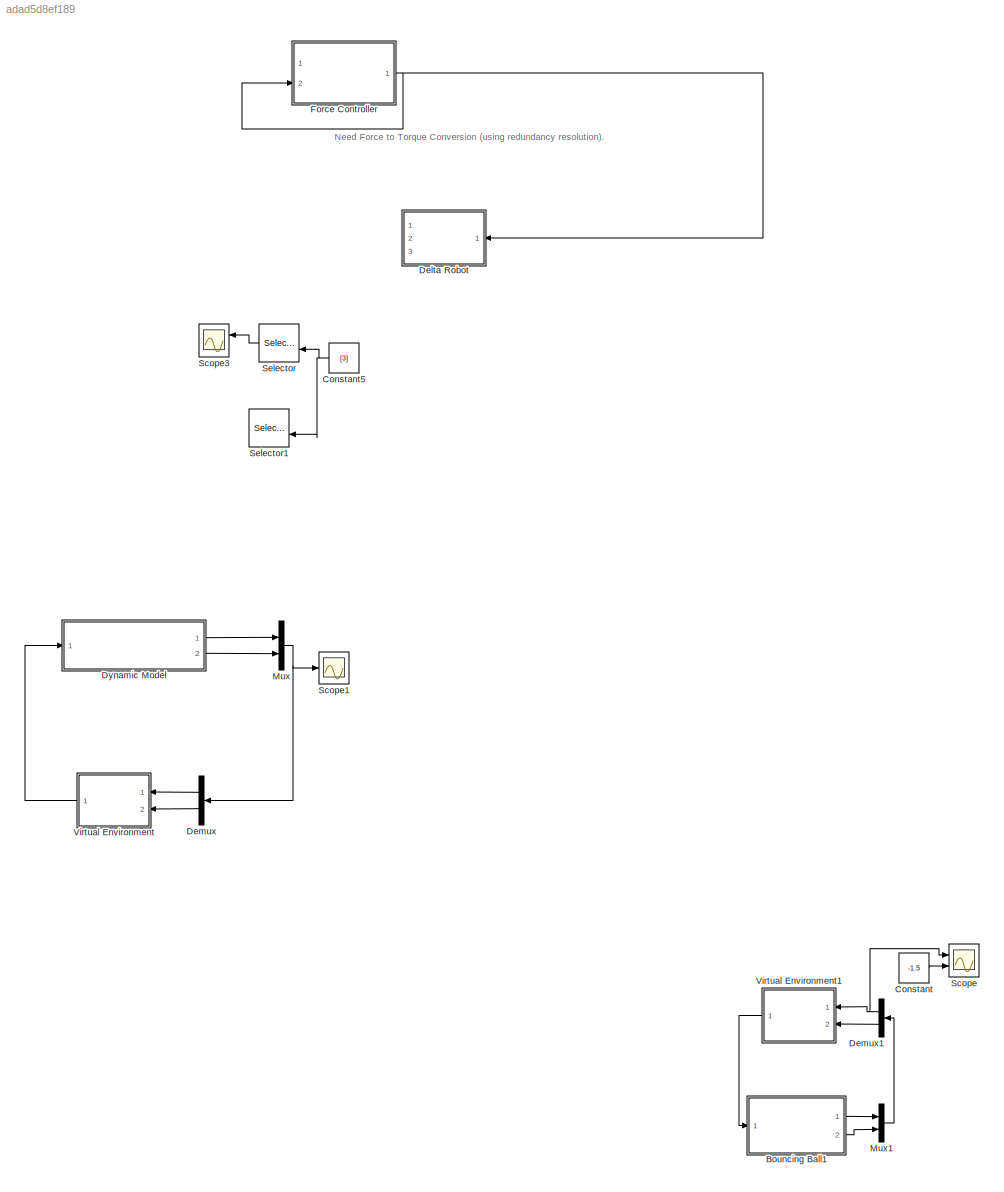
MODEL slx_adad5d8ef189
KIND model
CONFIG AbsTol = auto
CONFIG EnableMultiTasking = off
CONFIG FixedStep = auto
CONFIG MaxStep = .0001
CONFIG MinStep = auto
CONFIG RelTol = auto
CONFIG SampleTimeConstraint = Unconstrained
CONFIG Solver = ode23t
CONFIG SolverName = ode23t
CONFIG StartTime = 0.0
CONFIG StopTime = 30
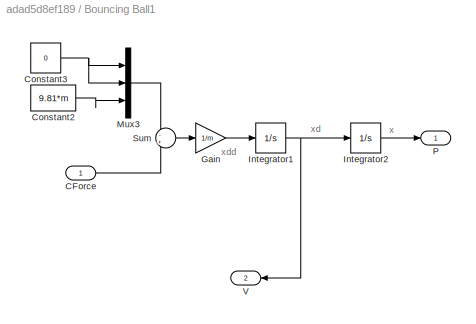
BLOCK [SubSystem] Bouncing Ball1
  Commented = on
  Ports = [1, 2]
  RequestExecContextInheritance = off
BLOCK [Inport] Bouncing Ball1/CForce
  IconDisplay = Port number
BLOCK [Constant] Bouncing Ball1/Constant2
  Value = 9.81*m
BLOCK [Constant] Bouncing Ball1/Constant3
  Value = 0
BLOCK [Gain] Bouncing Ball1/Gain
  Gain = 1/m
  OutDataTypeStr = Inherit: Inherit via internal rule
  ParamDataTypeStr = Inherit: Inherit via internal rule
  SaturateOnIntegerOverflow = off
BLOCK [Integrator] Bouncing Ball1/Integrator1
  InitialCondition = [0;0;0]
  Ports = [1, 1]
BLOCK [Integrator] Bouncing Ball1/Integrator2
  InitialCondition = [0;0;-0.5]
  Ports = [1, 1]
BLOCK [Mux] Bouncing Ball1/Mux3
  DisplayOption = bar
  Inputs = 3
  Ports = [3, 1]
BLOCK [Outport] Bouncing Ball1/P
  IconDisplay = Port number
BLOCK [Sum] Bouncing Ball1/Sum
  IconShape = round
  InputSameDT = off
  Inputs = -+
  OutDataTypeStr = Inherit: Inherit via internal rule
  Ports = [2, 1]
  SaturateOnIntegerOverflow = off
BLOCK [Outport] Bouncing Ball1/V
  IconDisplay = Port number
  Port = 2
BLOCK [Constant] Constant
  Commented = on
  Value = -1.5
BLOCK [Constant] Constant5
  Commented = on
  Value = [3]
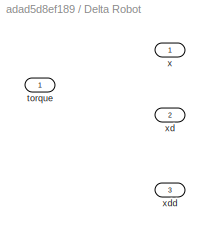
BLOCK [SubSystem] Delta Robot
  Commented = on
  Ports = [1, 3]
  RequestExecContextInheritance = off
BLOCK [Inport] Delta Robot/torque 
  IconDisplay = Port number
BLOCK [Outport] Delta Robot/x
  IconDisplay = Port number
BLOCK [Outport] Delta Robot/xd
  IconDisplay = Port number
  Port = 2
BLOCK [Outport] Delta Robot/xdd
  IconDisplay = Port number
  Port = 3
BLOCK [Demux] Demux
  DisplayOption = bar
  Outputs = 2
  Ports = [1, 2]
BLOCK [Demux] Demux1
  Commented = on
  DisplayOption = bar
  Outputs = 2
  Ports = [1, 2]
BLOCK [ModelReference] Dynamic Model 
  ModelNameDialog = jointSpace_delta
  ModelReferenceVersion = 1.15
  Ports = [1, 2]
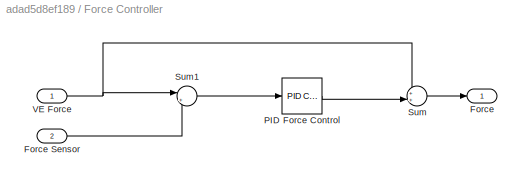
BLOCK [SubSystem] Force Controller
  Commented = on
  Ports = [2, 1]
  RequestExecContextInheritance = off
BLOCK [Outport] Force Controller/Force
  IconDisplay = Port number
BLOCK [Inport] Force Controller/Force Sensor
  IconDisplay = Port number
  Port = 2
BLOCK [Reference] Force Controller/PID Force Control   REF=simulink/Continuous/PID Controller
  Ports = [1, 1]
  SourceBlock = simulink/Continuous/PID Controller
  SourceProductBaseCode = SL
  SourceProductName = Simulink
  SourceType = PID 1dof
BLOCK [Sum] Force Controller/Sum
  IconShape = round
  InputSameDT = off
  Inputs = ++|
  OutDataTypeStr = Inherit: Inherit via internal rule
  Ports = [2, 1]
  SaturateOnIntegerOverflow = off
BLOCK [Sum] Force Controller/Sum1
  IconShape = round
  InputSameDT = off
  Inputs = |+-
  OutDataTypeStr = Inherit: Inherit via internal rule
  Ports = [2, 1]
  SaturateOnIntegerOverflow = off
BLOCK [Inport] Force Controller/VE Force
  IconDisplay = Port number
BLOCK [Mux] Mux
  DisplayOption = bar
  Inputs = 2
  Ports = [2, 1]
BLOCK [Mux] Mux1
  Commented = on
  DisplayOption = bar
  Inputs = 2
  Ports = [2, 1]
BLOCK [Scope] Scope
  Commented = on
  Floating = off
  NumInputPorts = 2
  Ports = [2]
  ScopeSpecificationString = Simulink.scopes.TimeScopeBlockCfg('CurrentConfiguration', extmgr.ConfigurationSet(extmgr.Configuration('Core','General UI',true),extmgr.Configuration('Core','Source UI',true),extmgr.Configuration('Sources','WiredSimulink',true,'DataLoggingVariableName','ScopeData2'),extmgr.Configuration('Visuals','Time Domain',true,'SerializedDisplays',{struct('MinYLimReal','-1.7','MaxYLimReal','0','YLabelReal','B...<+1624ch>
BLOCK [Scope] Scope1
  Floating = off
  NumInputPorts = 1
  Ports = [1]
  ScopeSpecificationString = Simulink.scopes.TimeScopeBlockCfg('CurrentConfiguration', extmgr.ConfigurationSet(extmgr.Configuration('Core','General UI',true),extmgr.Configuration('Core','Source UI',true),extmgr.Configuration('Sources','WiredSimulink',true,'DataLoggingVariableName','ScopeData1'),extmgr.Configuration('Visuals','Time Domain',true,'SerializedDisplays',{struct('MinYLimReal','-1.79684','MaxYLimReal','1.16367','YLab...<+1538ch>
BLOCK [Scope] Scope3
  Commented = on
  Floating = off
  NumInputPorts = 2
  Ports = [2]
  ScopeSpecificationString = Simulink.scopes.TimeScopeBlockCfg('CurrentConfiguration', extmgr.ConfigurationSet(extmgr.Configuration('Core','General UI',true),extmgr.Configuration('Core','Source UI',true),extmgr.Configuration('Sources','WiredSimulink',true,'DataLoggingVariableName','ScopeData3'),extmgr.Configuration('Visuals','Time Domain',true,'SerializedDisplays',{struct('MinYLimReal','-0.69409','MaxYLimReal','2','YLabelReal...<+1429ch>
BLOCK [Selector] Selector
  Commented = on
  IndexOptions = Index vector (port)
  Indices = [1 3]
  InputPortWidth = 6
  OutputSizes = 1
  Ports = [2, 1]
BLOCK [Selector] Selector1
  Commented = on
  IndexOptions = Index vector (port)
  Indices = [1 3]
  InputPortWidth = 6
  OutputSizes = 1
  Ports = [2, 1]
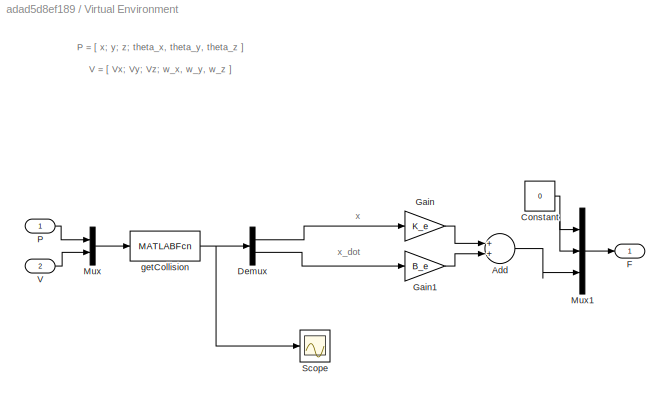
BLOCK [SubSystem] Virtual Environment
  Ports = [2, 1]
  RequestExecContextInheritance = off
BLOCK [Sum] Virtual Environment/Add
  InputSameDT = off
  OutDataTypeStr = Inherit: Inherit via internal rule
  Ports = [2, 1]
  SaturateOnIntegerOverflow = off
BLOCK [Constant] Virtual Environment/Constant
  Value = 0
BLOCK [Demux] Virtual Environment/Demux
  DisplayOption = bar
  Outputs = 2
  Ports = [1, 2]
BLOCK [Outport] Virtual Environment/F
  IconDisplay = Port number
BLOCK [Gain] Virtual Environment/Gain
  Gain = K_e
  OutDataTypeStr = Inherit: Inherit via internal rule
  ParamDataTypeStr = Inherit: Inherit via internal rule
  SaturateOnIntegerOverflow = off
BLOCK [Gain] Virtual Environment/Gain1
  Gain = B_e
  OutDataTypeStr = Inherit: Inherit via internal rule
  ParamDataTypeStr = Inherit: Inherit via internal rule
  SaturateOnIntegerOverflow = off
BLOCK [Mux] Virtual Environment/Mux
  DisplayOption = bar
  Inputs = 2
  Ports = [2, 1]
BLOCK [Mux] Virtual Environment/Mux1
  DisplayOption = bar
  Inputs = 3
  Ports = [3, 1]
BLOCK [Inport] Virtual Environment/P
  IconDisplay = Port number
BLOCK [Scope] Virtual Environment/Scope
  Floating = off
  NumInputPorts = 1
  Ports = [1]
  ScopeSpecificationString = Simulink.scopes.TimeScopeBlockCfg('CurrentConfiguration', extmgr.ConfigurationSet(extmgr.Configuration('Core','General UI',true),extmgr.Configuration('Core','Source UI',true),extmgr.Configuration('Sources','WiredSimulink',true,'DataLoggingVariableName','ScopeData1'),extmgr.Configuration('Visuals','Time Domain',true,'SerializedDisplays',{struct('MinYLimReal','-0.5625','MaxYLimReal','0.0625','YLabel...<+1385ch>
BLOCK [Inport] Virtual Environment/V
  IconDisplay = Port number
  Port = 2
BLOCK [MATLABFcn] Virtual Environment/getCollision
  MATLABFcn = getCollision(u)
  OutputDimensions = 2
  Ports = [1, 1]
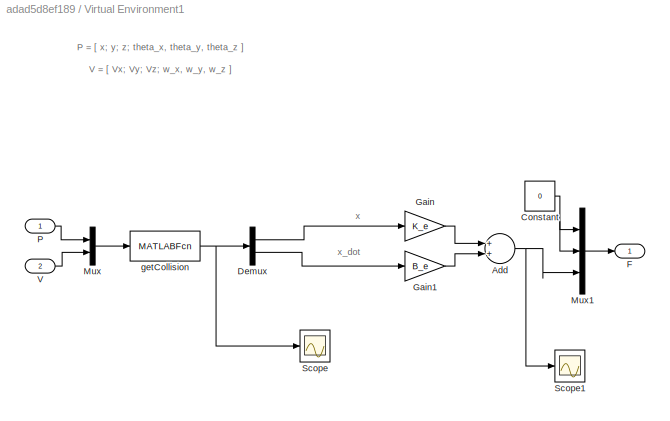
BLOCK [SubSystem] Virtual Environment1
  Commented = on
  Ports = [2, 1]
  RequestExecContextInheritance = off
BLOCK [Sum] Virtual Environment1/Add
  InputSameDT = off
  OutDataTypeStr = Inherit: Inherit via internal rule
  Ports = [2, 1]
  SaturateOnIntegerOverflow = off
BLOCK [Constant] Virtual Environment1/Constant
  Value = 0
BLOCK [Demux] Virtual Environment1/Demux
  DisplayOption = bar
  Outputs = 2
  Ports = [1, 2]
BLOCK [Outport] Virtual Environment1/F
  IconDisplay = Port number
BLOCK [Gain] Virtual Environment1/Gain
  Gain = K_e
  OutDataTypeStr = Inherit: Inherit via internal rule
  ParamDataTypeStr = Inherit: Inherit via internal rule
  SaturateOnIntegerOverflow = off
BLOCK [Gain] Virtual Environment1/Gain1
  Gain = B_e
  OutDataTypeStr = Inherit: Inherit via internal rule
  ParamDataTypeStr = Inherit: Inherit via internal rule
  SaturateOnIntegerOverflow = off
BLOCK [Mux] Virtual Environment1/Mux
  DisplayOption = bar
  Inputs = 2
  Ports = [2, 1]
BLOCK [Mux] Virtual Environment1/Mux1
  DisplayOption = bar
  Inputs = 3
  Ports = [3, 1]
BLOCK [Inport] Virtual Environment1/P
  IconDisplay = Port number
BLOCK [Scope] Virtual Environment1/Scope
  Floating = off
  NumInputPorts = 1
  Ports = [1]
  ScopeSpecificationString = Simulink.scopes.TimeScopeBlockCfg('CurrentConfiguration', extmgr.ConfigurationSet(extmgr.Configuration('Core','General UI',true),extmgr.Configuration('Core','Source UI',true),extmgr.Configuration('Sources','WiredSimulink',true,'DataLoggingVariableName','ScopeData1'),extmgr.Configuration('Visuals','Time Domain',true,'SerializedDisplays',{struct('MinYLimReal','-0.55057','MaxYLimReal','4.95513','YLab...<+1422ch>
BLOCK [Scope] Virtual Environment1/Scope1
  Floating = off
  NumInputPorts = 1
  Ports = [1]
  ScopeSpecificationString = Simulink.scopes.TimeScopeBlockCfg('CurrentConfiguration', extmgr.ConfigurationSet(extmgr.Configuration('Core','General UI',true),extmgr.Configuration('Core','Source UI',true),extmgr.Configuration('Sources','WiredSimulink',true,'DataLoggingVariableName','ScopeData1'),extmgr.Configuration('Visuals','Time Domain',true,'SerializedDisplays',{struct('MinYLimReal','-157.70696','MaxYLimReal','1419.36267',...<+1380ch>
BLOCK [Inport] Virtual Environment1/V
  IconDisplay = Port number
  Port = 2
BLOCK [MATLABFcn] Virtual Environment1/getCollision
  MATLABFcn = getCollision(u)
  OutputDimensions = 2
  Ports = [1, 1]
ANNOTATION (root): Need Force to Torque Conversion (using redundancy resolution).
ANNOTATION Bouncing Ball1: x
ANNOTATION Bouncing Ball1: xd
ANNOTATION Bouncing Ball1: xdd
ANNOTATION Virtual Environment: P = [ x; y; z; theta_x, theta_y, theta_z ]
ANNOTATION Virtual Environment: V = [ Vx; Vy; Vz; w_x, w_y, w_z ]
ANNOTATION Virtual Environment: x
ANNOTATION Virtual Environment: x_dot
ANNOTATION Virtual Environment1: P = [ x; y; z; theta_x, theta_y, theta_z ]
ANNOTATION Virtual Environment1: V = [ Vx; Vy; Vz; w_x, w_y, w_z ]
ANNOTATION Virtual Environment1: x
ANNOTATION Virtual Environment1: x_dot
LINE Bouncing Ball1/CForce:1 -> Bouncing Ball1/Sum:2
LINE Bouncing Ball1/Constant2:1 -> Bouncing Ball1/Mux3:3
NET Bouncing Ball1/Constant3:1 -> Bouncing Ball1/Mux3:1, Bouncing Ball1/Mux3:2
LINE Bouncing Ball1/Gain:1 -> Bouncing Ball1/Integrator1:1
NET Bouncing Ball1/Integrator1:1 -> Bouncing Ball1/Integrator2:1, Bouncing Ball1/V:1
LINE Bouncing Ball1/Integrator2:1 -> Bouncing Ball1/P:1
LINE Bouncing Ball1/Mux3:1 -> Bouncing Ball1/Sum:1
LINE Bouncing Ball1/Sum:1 -> Bouncing Ball1/Gain:1
LINE Bouncing Ball1:1 -> Mux1:1
LINE Bouncing Ball1:2 -> Mux1:2
NET Constant5:1 -> Selector1:2, Selector:2
LINE Constant:1 -> Scope:2
NET Demux1:1 -> Scope:1, Virtual Environment1:1
LINE Demux1:2 -> Virtual Environment1:2
LINE Demux:1 -> Virtual Environment:1
LINE Demux:2 -> Virtual Environment:2
LINE Dynamic Model :1 -> Mux:1
LINE Dynamic Model :2 -> Mux:2
LINE Force Controller/Force Sensor:1 -> Force Controller/Sum1:2
LINE Force Controller/PID Force Control :1 -> Force Controller/Sum:2
LINE Force Controller/Sum1:1 -> Force Controller/PID Force Control :1
LINE Force Controller/Sum:1 -> Force Controller/Force:1
NET Force Controller/VE Force:1 -> Force Controller/Sum1:1, Force Controller/Sum:1
NET Force Controller:1 -> Delta Robot:1, Force Controller:2
LINE Mux1:1 -> Demux1:1
NET Mux:1 -> Demux:1, Scope1:1
LINE Selector:1 -> Scope3:1
LINE Virtual Environment/Add:1 -> Virtual Environment/Mux1:3
NET Virtual Environment/Constant:1 -> Virtual Environment/Mux1:1, Virtual Environment/Mux1:2
LINE Virtual Environment/Demux:1 -> Virtual Environment/Gain:1
LINE Virtual Environment/Demux:2 -> Virtual Environment/Gain1:1
LINE Virtual Environment/Gain1:1 -> Virtual Environment/Add:2
LINE Virtual Environment/Gain:1 -> Virtual Environment/Add:1
LINE Virtual Environment/Mux1:1 -> Virtual Environment/F:1
LINE Virtual Environment/Mux:1 -> Virtual Environment/getCollision:1
LINE Virtual Environment/P:1 -> Virtual Environment/Mux:1
LINE Virtual Environment/V:1 -> Virtual Environment/Mux:2
NET Virtual Environment/getCollision:1 -> Virtual Environment/Demux:1, Virtual Environment/Scope:1
NET Virtual Environment1/Add:1 -> Virtual Environment1/Mux1:3, Virtual Environment1/Scope1:1
NET Virtual Environment1/Constant:1 -> Virtual Environment1/Mux1:1, Virtual Environment1/Mux1:2
LINE Virtual Environment1/Demux:1 -> Virtual Environment1/Gain:1
LINE Virtual Environment1/Demux:2 -> Virtual Environment1/Gain1:1
LINE Virtual Environment1/Gain1:1 -> Virtual Environment1/Add:2
LINE Virtual Environment1/Gain:1 -> Virtual Environment1/Add:1
LINE Virtual Environment1/Mux1:1 -> Virtual Environment1/F:1
LINE Virtual Environment1/Mux:1 -> Virtual Environment1/getCollision:1
LINE Virtual Environment1/P:1 -> Virtual Environment1/Mux:1
LINE Virtual Environment1/V:1 -> Virtual Environment1/Mux:2
NET Virtual Environment1/getCollision:1 -> Virtual Environment1/Demux:1, Virtual Environment1/Scope:1
LINE Virtual Environment1:1 -> Bouncing Ball1:1
LINE Virtual Environment:1 -> Dynamic Model :1
note: NET lines group one-source signal fan-out (src -> all destinations, sorted); 1:1 wires keep LINE
